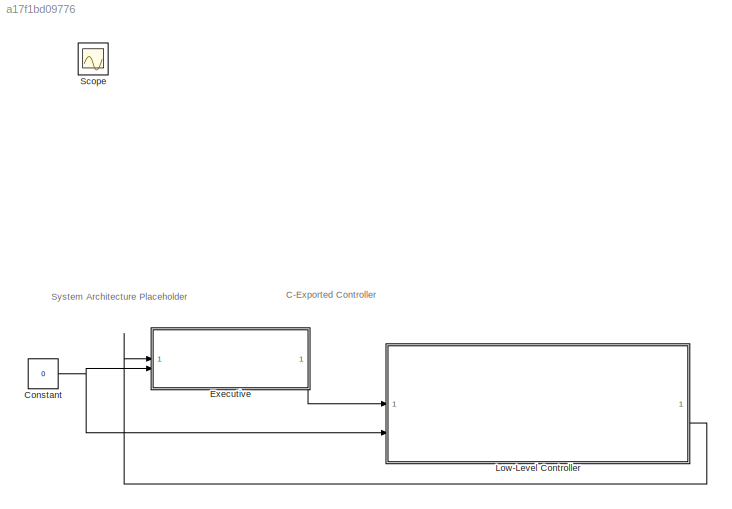
MODEL slx_a17f1bd09776
KIND model
CONFIG AbsTol = abs_tol
CONFIG EnableMultiTasking = off
CONFIG FixedStep = dt_sim
CONFIG MaxStep = auto
CONFIG MinStep = auto
CONFIG RelTol = rel_tol
CONFIG SampleTimeConstraint = Unconstrained
CONFIG SolverName = FixedStepDiscrete
CONFIG StartTime = 0.0
CONFIG StopTime = tspan
BLOCK [Constant] Constant
  Value = 0
BLOCK [SubSystem] Executive
  ReferencedSubsystem = Executive
BLOCK [SubSystem] Low-Level Controller
  ReferencedSubsystem = controller
BLOCK [Scope] Scope
  ActiveDisplayYMaximum = 0.79721663606048965
  ActiveDisplayYMinimum = -0.048832566475369238
  Floating = off
  GraphicalSettings = {"Style":{"BackgroundColor":[0.12941176470588237,0.12941176470588237,0.12941176470588237],"AxesColor":[0.07058823529411765,0.07058823529411765,0.07058823529411765],"LabelsColor":[0.8509803921568627,0.8509803921568627,0.8509803921568627],"PreserveColors":false,"Visible":[true,true,true,true,true,true,true,true,true,true,true,true,true],"LineStyle":["-","-","-","-","-","-","-","-","-","-","-","-","-...<+3592ch>
  IOType = viewer
  LayoutDimensionsString = [1,1]
  MultipleDisplayCache = [{"MaxYLimMag":1.125,"MaxYLimReal":0.79721663606048965,"MinYLimMag":0,"MinYLimReal":-0.048832566475369238,"PlotAsMagnitudePhase":false,"ShowGrid":true,"ShowLegend":false,"Title":"%<SignalLabel>","YLabel":""}]
  NumInputPorts = 1
  ScopeFrameLocation = window
  WasSavedAsWebScope = on
  WindowPosition = [1000.000000,510.000000,560.000000,420.000000,]
ANNOTATION (root): C-Exported Controller
ANNOTATION (root): System Architecture Placeholder
NET Constant:1 -> Executive:2, Low-Level Controller:3
LINE Executive:1 -> Low-Level Controller:1
LINE Low-Level Controller:2 -> Executive:1
note: NET lines group one-source signal fan-out (src -> all destinations, sorted); 1:1 wires keep LINE
